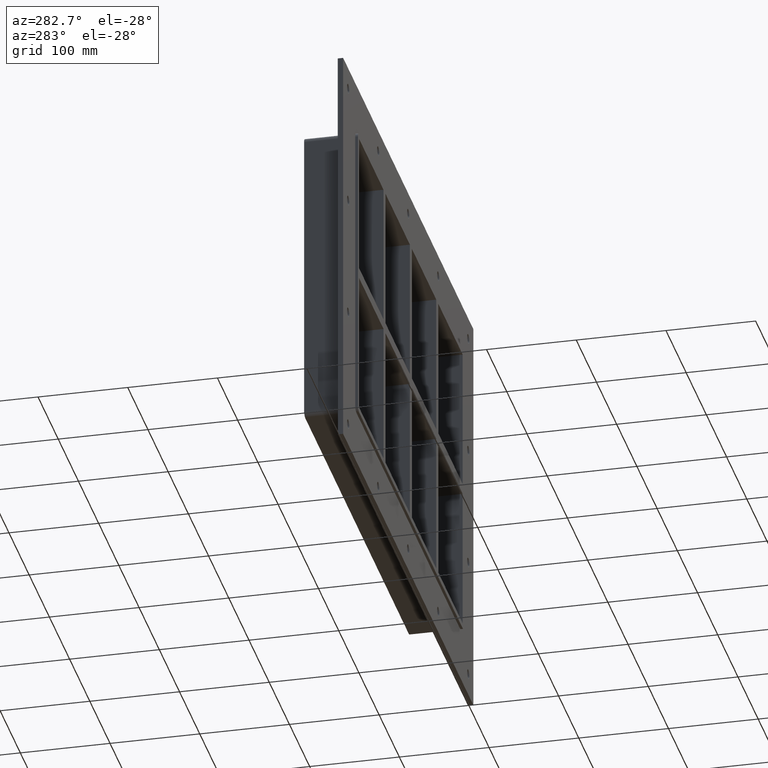
[diagram: clean part render]
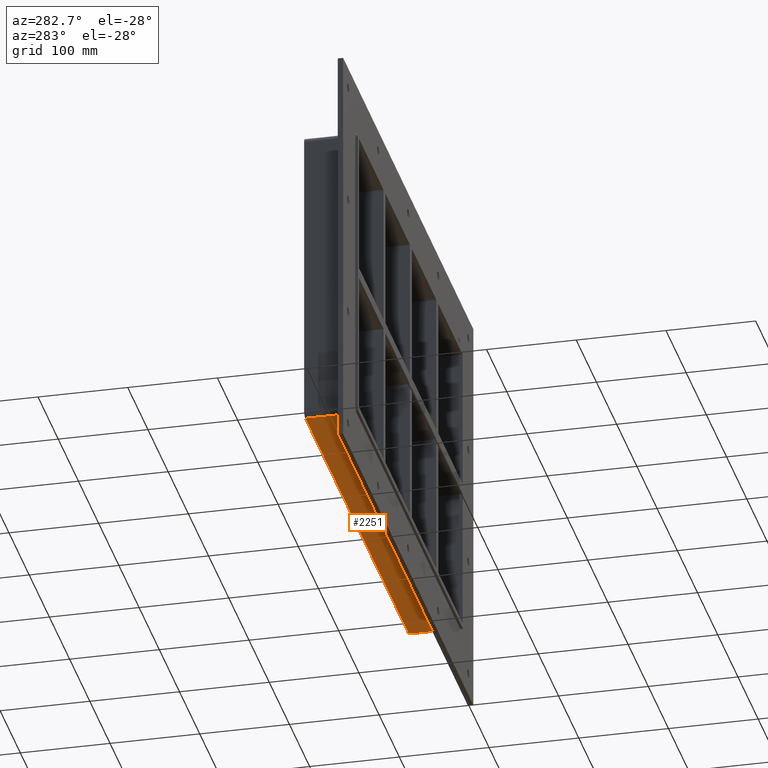
[diagram: same view with one face highlighted and labeled with its STEP entity id]
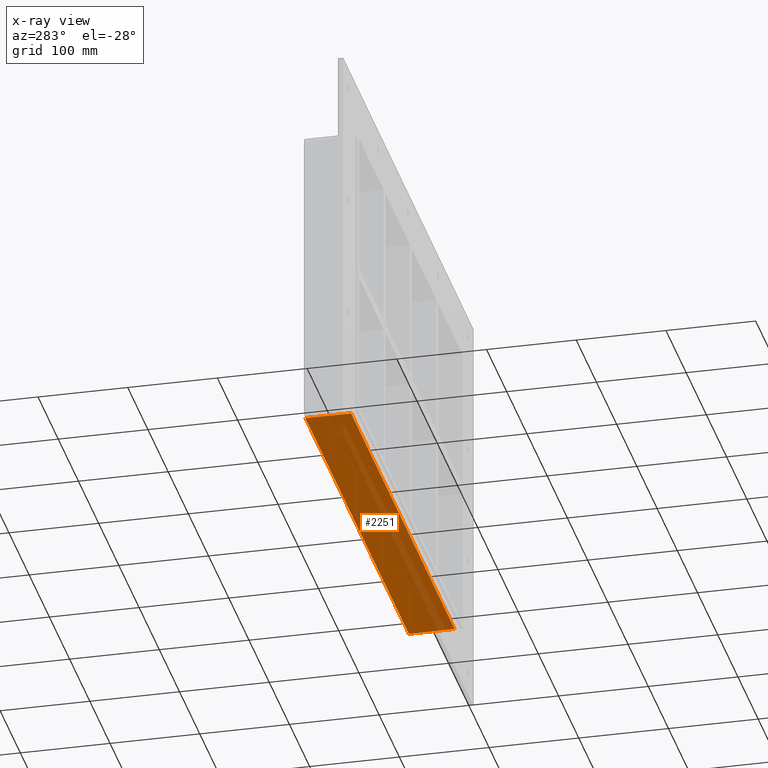
[diagram: x-ray of the same camera — body ghosted, the highlighted face saturated]
A machine part, auxiliary view. The second image highlights one B-rep face of the part: STEP entity #2251.
The next image is the same camera in x-ray: the body ghosted, the highlighted face saturated — about 25% of this face is hidden behind the body in this view.
In plain terms, the highlighted planar face has unit normal (0, 0, -1).
Its self-contained STEP definition (entity closure, byte-faithful):
#1174=CARTESIAN_POINT('',(256.0,57.0,-171.50000000000003));
#1175=VERTEX_POINT('',#1174);
#1185=CARTESIAN_POINT('',(-256.0,57.0,-171.50000000000003));
#1186=VERTEX_POINT('',#1185);
#1187=CARTESIAN_POINT('',(256.0,57.0,-171.50000000000003));
#1188=DIRECTION('',(-1.0,0.0,0.0));
#1189=VECTOR('',#1188,512.0);
#1190=LINE('',#1187,#1189);
#1191=EDGE_CURVE('',#1175,#1186,#1190,.T.);
#1769=CARTESIAN_POINT('',(-256.0,6.000000000000001,-171.50000000000003));
#1770=VERTEX_POINT('',#1769);
#1780=CARTESIAN_POINT('',(256.0,6.000000000000001,-171.50000000000003));
#1781=VERTEX_POINT('',#1780);
#1782=CARTESIAN_POINT('',(256.0,6.000000000000001,-171.50000000000003));
#1783=DIRECTION('',(-1.0,0.0,0.0));
#1784=VECTOR('',#1783,512.0);
#1785=LINE('',#1782,#1784);
#1786=EDGE_CURVE('',#1781,#1770,#1785,.T.);
#2190=CARTESIAN_POINT('',(256.0,6.000000000000001,-171.50000000000003));
#2191=DIRECTION('',(0.0,1.0,0.0));
#2192=VECTOR('',#2191,51.0);
#2193=LINE('',#2190,#2192);
#2194=EDGE_CURVE('',#1781,#1175,#2193,.T.);
#2235=CARTESIAN_POINT('',(262.0,0.0,-171.50000000000003));
#2236=DIRECTION('',(0.0,0.0,-1.0));
#2237=DIRECTION('',(-1.0,0.0,0.0));
#2238=AXIS2_PLACEMENT_3D('',#2235,#2236,#2237);
#2239=PLANE('',#2238);
#2240=ORIENTED_EDGE('',*,*,#1786,.T.);
#2241=CARTESIAN_POINT('',(-256.0,57.0,-171.50000000000003));
#2242=DIRECTION('',(0.0,-1.0,0.0));
#2243=VECTOR('',#2242,51.0);
#2244=LINE('',#2241,#2243);
#2245=EDGE_CURVE('',#1186,#1770,#2244,.T.);
#2246=ORIENTED_EDGE('',*,*,#2245,.F.);
#2247=ORIENTED_EDGE('',*,*,#1191,.F.);
#2248=ORIENTED_EDGE('',*,*,#2194,.F.);
#2249=EDGE_LOOP('',(#2240,#2246,#2247,#2248));
#2250=FACE_OUTER_BOUND('',#2249,.T.);
#2251=ADVANCED_FACE('',(#2250),#2239,.T.);